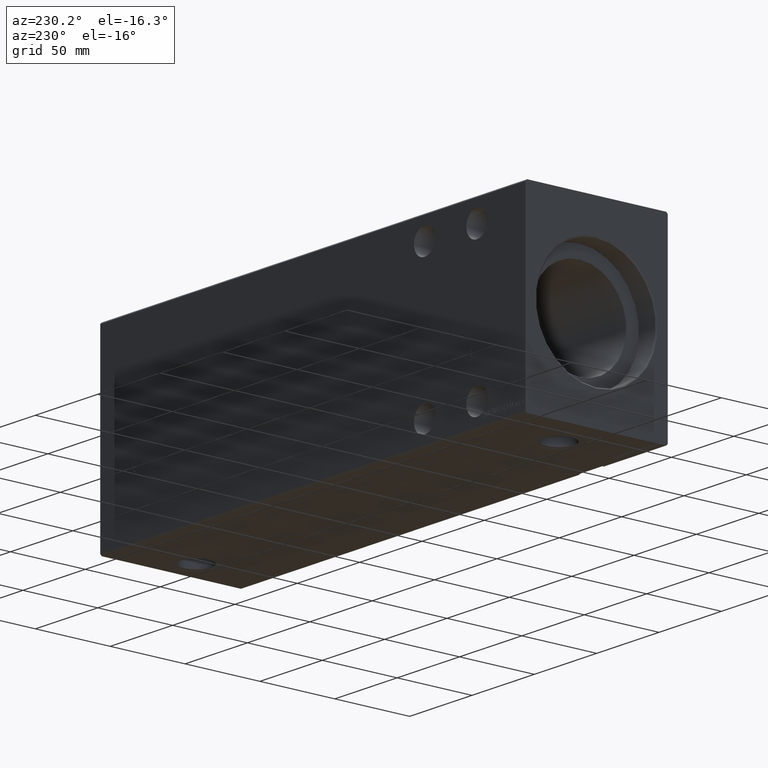
[diagram: clean part render]
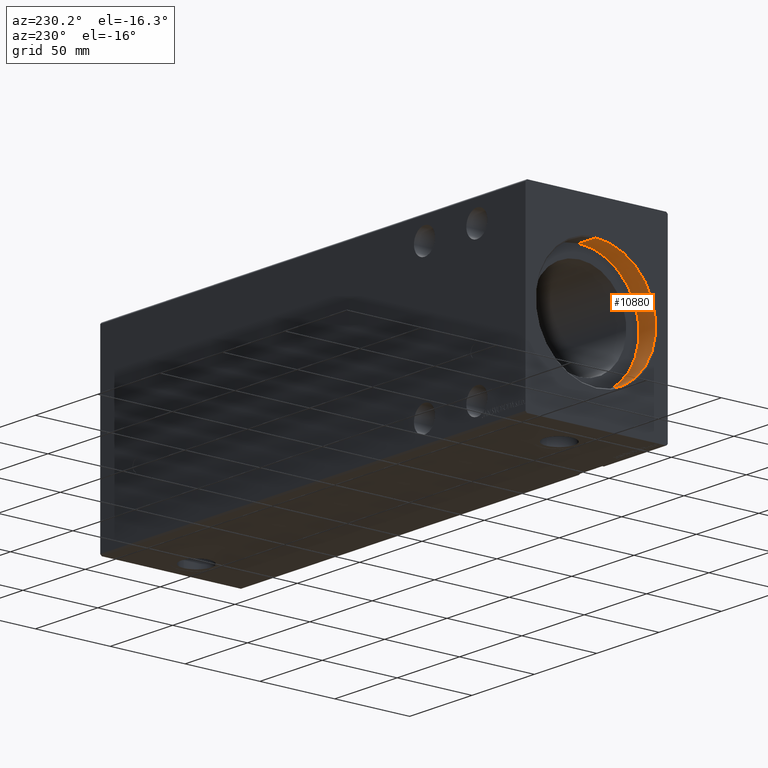
[diagram: same view with one face highlighted and labeled with its STEP entity id]
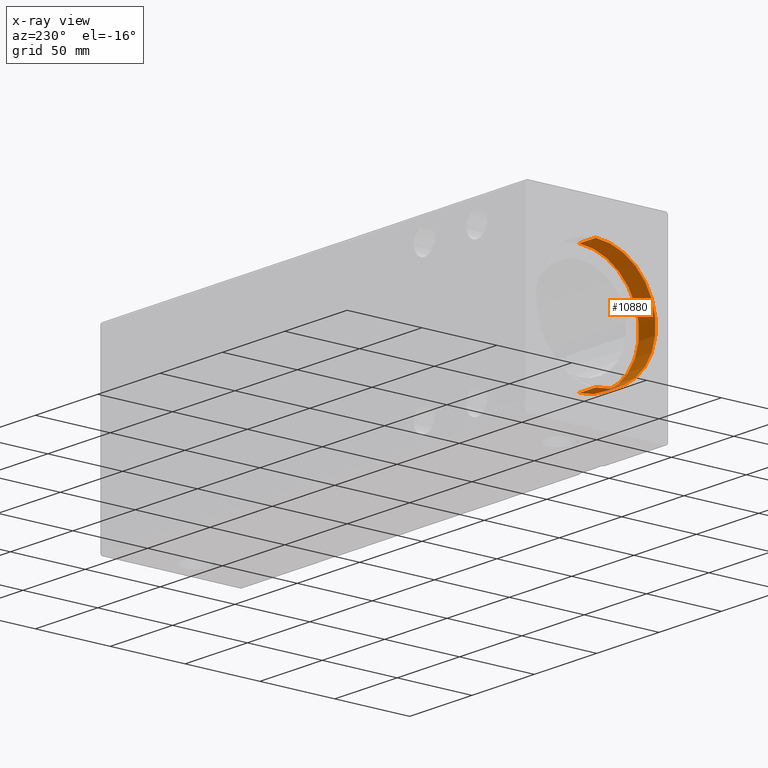
[diagram: x-ray of the same camera — body ghosted, the highlighted face saturated]
A machine part, auxiliary view. The second image highlights one B-rep face of the part: STEP entity #10880.
The next image is the same camera in x-ray: the body ghosted, the highlighted face saturated — about 0% of this face is hidden behind the body in this view.
In plain terms, the highlighted cylindrical surface (partial cylindrical patch) has radius 40 mm, axis along (-1, -0, -0).
Its self-contained STEP definition (entity closure, byte-faithful):
#988 = AXIS2_PLACEMENT_3D ( 'NONE', #2106, #25327, #15314 ) ;
#1433 = DIRECTION ( 'NONE',  ( 0.000000000000000000, 0.000000000000000000, 1.000000000000000000 ) ) ;
#2073 = VERTEX_POINT ( 'NONE', #14027 ) ;
#2106 = CARTESIAN_POINT ( 'NONE',  ( 0.6999999999999297895, 0.000000000000000000, 0.000000000000000000 ) ) ;
#2404 = CARTESIAN_POINT ( 'NONE',  ( 14.00000000000000000, 0.000000000000000000, 40.00000000000000000 ) ) ;
#5942 = DIRECTION ( 'NONE',  ( 0.000000000000000000, 0.000000000000000000, 1.000000000000000000 ) ) ;
#6196 = ORIENTED_EDGE ( 'NONE', *, *, #28879, .F. ) ;
#6724 = EDGE_LOOP ( 'NONE', ( #6196, #28482, #30957, #12957 ) ) ;
#6756 = DIRECTION ( 'NONE',  ( -1.000000000000000000, -0.000000000000000000, -0.000000000000000000 ) ) ;
#10375 = LINE ( 'NONE', #13143, #36428 ) ;
#10880 = ADVANCED_FACE ( 'NONE', ( #28349 ), #22161, .F. ) ;
#11059 = DIRECTION ( 'NONE',  ( -1.000000000000000000, -0.000000000000000000, -0.000000000000000000 ) ) ;
#12450 = VERTEX_POINT ( 'NONE', #2404 ) ;
#12957 = ORIENTED_EDGE ( 'NONE', *, *, #25448, .F. ) ;
#13143 = CARTESIAN_POINT ( 'NONE',  ( 14.00000000000000000, 0.000000000000000000, 40.00000000000000000 ) ) ;
#14027 = CARTESIAN_POINT ( 'NONE',  ( 14.00000000000000000, 4.898587196589413026E-15, -40.00000000000000000 ) ) ;
#15314 = DIRECTION ( 'NONE',  ( 0.000000000000000000, 0.000000000000000000, -1.000000000000000000 ) ) ;
#15993 = EDGE_CURVE ( 'NONE', #2073, #35454, #24485, .T. ) ;
#18736 = AXIS2_PLACEMENT_3D ( 'NONE', #40243, #20849, #1433 ) ;
#19371 = CIRCLE ( 'NONE', #988, 40.00000000000000000 ) ;
#20849 = DIRECTION ( 'NONE',  ( -1.000000000000000000, 0.000000000000000000, 0.000000000000000000 ) ) ;
#22161 = CYLINDRICAL_SURFACE ( 'NONE', #35580, 40.00000000000000000 ) ;
#23631 = EDGE_CURVE ( 'NONE', #35454, #33618, #19371, .T. ) ;
#24485 = LINE ( 'NONE', #30900, #37086 ) ;
#25136 = CARTESIAN_POINT ( 'NONE',  ( 14.00000000000000000, 0.000000000000000000, 0.000000000000000000 ) ) ;
#25327 = DIRECTION ( 'NONE',  ( -1.000000000000000000, 0.000000000000000000, 0.000000000000000000 ) ) ;
#25448 = EDGE_CURVE ( 'NONE', #12450, #33618, #10375, .T. ) ;
#25967 = CARTESIAN_POINT ( 'NONE',  ( 0.6999999999999297895, 0.000000000000000000, 40.00000000000000000 ) ) ;
#26932 = CIRCLE ( 'NONE', #18736, 40.00000000000000000 ) ;
#28349 = FACE_OUTER_BOUND ( 'NONE', #6724, .T. ) ;
#28482 = ORIENTED_EDGE ( 'NONE', *, *, #15993, .T. ) ;
#28879 = EDGE_CURVE ( 'NONE', #2073, #12450, #26932, .T. ) ;
#30900 = CARTESIAN_POINT ( 'NONE',  ( 14.00000000000000000, 4.898587196589413026E-15, -40.00000000000000000 ) ) ;
#30957 = ORIENTED_EDGE ( 'NONE', *, *, #23631, .T. ) ;
#31983 = CARTESIAN_POINT ( 'NONE',  ( 0.6999999999999297895, 4.898587196589413026E-15, -40.00000000000000000 ) ) ;
#33618 = VERTEX_POINT ( 'NONE', #25967 ) ;
#35166 = DIRECTION ( 'NONE',  ( -1.000000000000000000, -0.000000000000000000, -0.000000000000000000 ) ) ;
#35454 = VERTEX_POINT ( 'NONE', #31983 ) ;
#35580 = AXIS2_PLACEMENT_3D ( 'NONE', #25136, #35166, #5942 ) ;
#36428 = VECTOR ( 'NONE', #6756, 1000.000000000000000 ) ;
#37086 = VECTOR ( 'NONE', #11059, 1000.000000000000000 ) ;
#40243 = CARTESIAN_POINT ( 'NONE',  ( 14.00000000000000000, 0.000000000000000000, 0.000000000000000000 ) ) ;